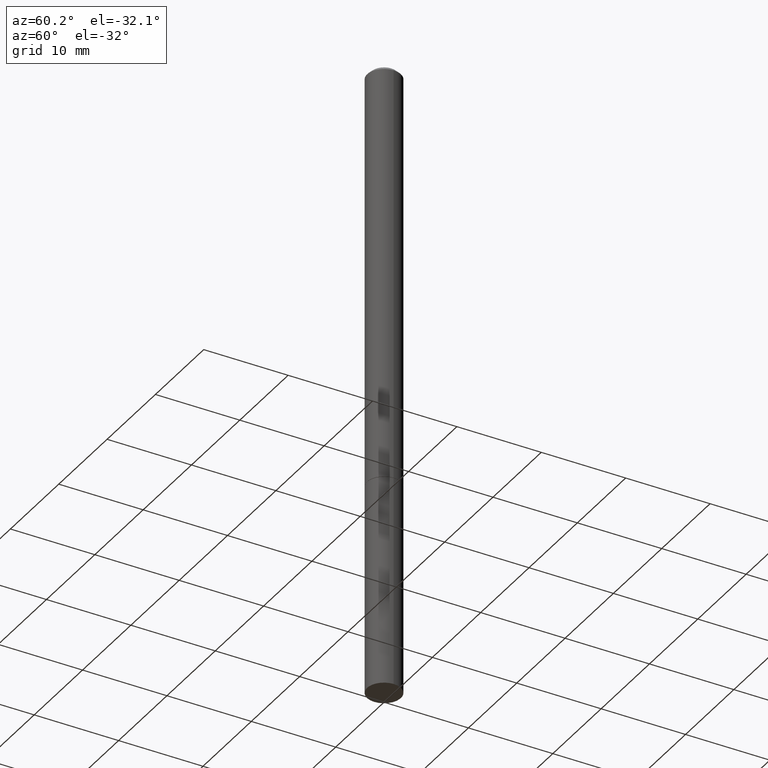
[diagram: clean part render]
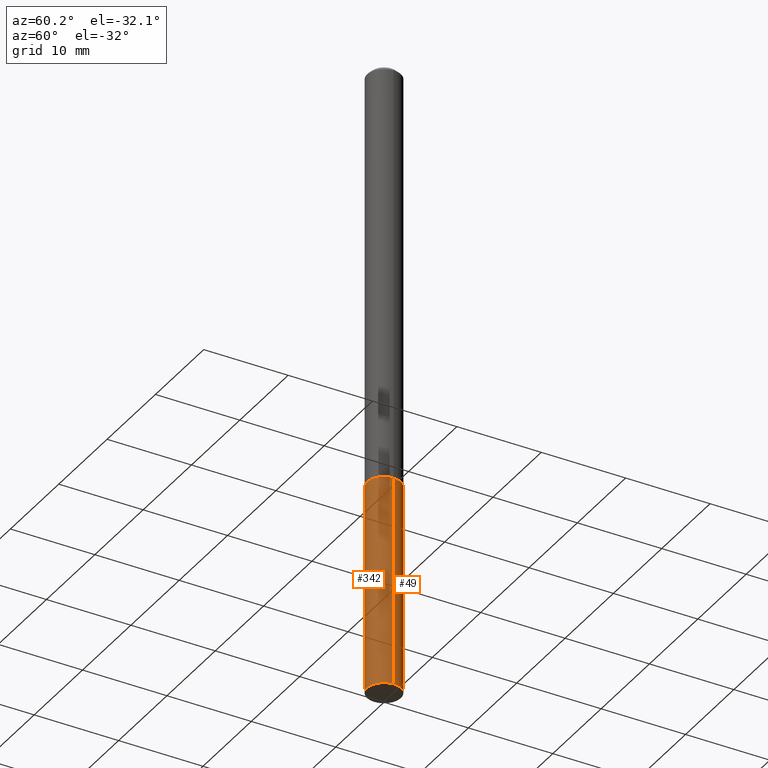
[diagram: same view with one multi-face feature highlighted, each face labeled with its STEP entity id]
A machine part, auxiliary view. The highlighted faces form ONE feature: a constant-radius fillet chain: 2 tangent blend faces with common blend radius 2.0002 mm. The faces share edges in the B-rep.
Their STEP definitions:
[1] entity #342 (Cylinder):
#13 = VERTEX_POINT ( 'NONE', #56 ) ;
#17 = AXIS2_PLACEMENT_3D ( 'NONE', #284, #256, #144 ) ;
#20 = DIRECTION ( 'NONE',  ( 1.000000000000000000, -6.982962677686265922E-15, 4.876176775795935232E-29 ) ) ;
#25 = VERTEX_POINT ( 'NONE', #330 ) ;
#27 = CARTESIAN_POINT ( 'NONE',  ( 7.220980290903470182E-29, -1.030964609733603853E-14, -2.952799999999999869 ) ) ;
#33 = DIRECTION ( 'NONE',  ( -2.445468806185136597E-29, 3.491481338843145583E-15, 1.000000000000000000 ) ) ;
#46 = AXIS2_PLACEMENT_3D ( 'NONE', #89, #33, #20 ) ;
#48 = LINE ( 'NONE', #212, #356 ) ;
#56 = CARTESIAN_POINT ( 'NONE',  ( 0.07875000000000000056, -1.085955440820383187E-14, -2.952799999999999869 ) ) ;
#74 = CARTESIAN_POINT ( 'NONE',  ( 0.07875000000000000056, -7.422889326380523475E-15, -1.968499999999999694 ) ) ;
#81 = VERTEX_POINT ( 'NONE', #307 ) ;
#89 = CARTESIAN_POINT ( 'NONE',  ( 0.000000000000000000, 0.000000000000000000, 0.000000000000000000 ) ) ;
#100 = VECTOR ( 'NONE', #362, 39.37007874015748143 ) ;
#116 = EDGE_LOOP ( 'NONE', ( #235, #266, #197, #351 ) ) ;
#144 = DIRECTION ( 'NONE',  ( 1.000000000000000000, -6.982962677686261977E-15, 0.000000000000000000 ) ) ;
#146 = CIRCLE ( 'NONE', #288, 0.07875000000000000056 ) ;
#162 = EDGE_CURVE ( 'NONE', #13, #360, #48, .T. ) ;
#168 = DIRECTION ( 'NONE',  ( -2.445468806185136597E-29, 3.491481338843145583E-15, 1.000000000000000000 ) ) ;
#176 = CIRCLE ( 'NONE', #17, 0.07875000000000000056 ) ;
#185 = EDGE_CURVE ( 'NONE', #81, #360, #176, .T. ) ;
#197 = ORIENTED_EDGE ( 'NONE', *, *, #162, .T. ) ;
#201 = DIRECTION ( 'NONE',  ( 1.000000000000000000, -6.982962677686261977E-15, 0.000000000000000000 ) ) ;
#202 = CYLINDRICAL_SURFACE ( 'NONE', #46, 0.07875000000000000056 ) ;
#212 = CARTESIAN_POINT ( 'NONE',  ( 0.07875000000000000056, -5.499083108677934443E-16, 3.839989210939299016E-30 ) ) ;
#226 = FACE_OUTER_BOUND ( 'NONE', #116, .T. ) ;
#235 = ORIENTED_EDGE ( 'NONE', *, *, #302, .F. ) ;
#252 = LINE ( 'NONE', #328, #100 ) ;
#256 = DIRECTION ( 'NONE',  ( -2.445468806185136597E-29, 3.491481338843145583E-15, 1.000000000000000000 ) ) ;
#266 = ORIENTED_EDGE ( 'NONE', *, *, #358, .T. ) ;
#284 = CARTESIAN_POINT ( 'NONE',  ( 4.813905344975440714E-29, -6.872981015512730918E-15, -1.968499999999999694 ) ) ;
#288 = AXIS2_PLACEMENT_3D ( 'NONE', #27, #168, #201 ) ;
#302 = EDGE_CURVE ( 'NONE', #25, #81, #252, .T. ) ;
#307 = CARTESIAN_POINT ( 'NONE',  ( -0.07875000000000000056, -8.031761152013305527E-15, -1.968499999999999694 ) ) ;
#319 = DIRECTION ( 'NONE',  ( -2.445468806185136877E-29, 3.491481338843145188E-15, 1.000000000000000000 ) ) ;
#328 = CARTESIAN_POINT ( 'NONE',  ( -0.07875000000000000056, 5.595524044110789003E-16, -3.873661383575737792E-30 ) ) ;
#330 = CARTESIAN_POINT ( 'NONE',  ( -0.07875000000000000056, -8.031761152013305527E-15, -2.952799999999999869 ) ) ;
#342 = ADVANCED_FACE ( 'NONE', ( #226 ), #202, .T. ) ;
#351 = ORIENTED_EDGE ( 'NONE', *, *, #185, .F. ) ;
#356 = VECTOR ( 'NONE', #319, 39.37007874015748143 ) ;
#358 = EDGE_CURVE ( 'NONE', #25, #13, #146, .T. ) ;
#360 = VERTEX_POINT ( 'NONE', #74 ) ;
#362 = DIRECTION ( 'NONE',  ( -2.445468806185136877E-29, 3.491481338843145188E-15, 1.000000000000000000 ) ) ;
[2] entity #49 (Cylinder):
#13 = VERTEX_POINT ( 'NONE', #56 ) ;
#25 = VERTEX_POINT ( 'NONE', #330 ) ;
#48 = LINE ( 'NONE', #212, #356 ) ;
#49 = ADVANCED_FACE ( 'NONE', ( #136 ), #326, .T. ) ;
#50 = DIRECTION ( 'NONE',  ( -2.445468806185136597E-29, 3.491481338843145583E-15, 1.000000000000000000 ) ) ;
#56 = CARTESIAN_POINT ( 'NONE',  ( 0.07875000000000000056, -1.085955440820383187E-14, -2.952799999999999869 ) ) ;
#74 = CARTESIAN_POINT ( 'NONE',  ( 0.07875000000000000056, -7.422889326380523475E-15, -1.968499999999999694 ) ) ;
#76 = CARTESIAN_POINT ( 'NONE',  ( 0.000000000000000000, 0.000000000000000000, 0.000000000000000000 ) ) ;
#81 = VERTEX_POINT ( 'NONE', #307 ) ;
#84 = DIRECTION ( 'NONE',  ( -2.445468806185136597E-29, 3.491481338843145583E-15, 1.000000000000000000 ) ) ;
#100 = VECTOR ( 'NONE', #362, 39.37007874015748143 ) ;
#104 = DIRECTION ( 'NONE',  ( 1.000000000000000000, -6.982962677686261977E-15, 0.000000000000000000 ) ) ;
#136 = FACE_OUTER_BOUND ( 'NONE', #188, .T. ) ;
#138 = ORIENTED_EDGE ( 'NONE', *, *, #302, .T. ) ;
#162 = EDGE_CURVE ( 'NONE', #13, #360, #48, .T. ) ;
#188 = EDGE_LOOP ( 'NONE', ( #216, #138, #255, #281 ) ) ;
#208 = CARTESIAN_POINT ( 'NONE',  ( 7.220980290903470182E-29, -1.030964609733603853E-14, -2.952799999999999869 ) ) ;
#211 = DIRECTION ( 'NONE',  ( -2.445468806185136597E-29, 3.491481338843145583E-15, 1.000000000000000000 ) ) ;
#212 = CARTESIAN_POINT ( 'NONE',  ( 0.07875000000000000056, -5.499083108677934443E-16, 3.839989210939299016E-30 ) ) ;
#214 = AXIS2_PLACEMENT_3D ( 'NONE', #76, #50, #301 ) ;
#216 = ORIENTED_EDGE ( 'NONE', *, *, #269, .T. ) ;
#243 = AXIS2_PLACEMENT_3D ( 'NONE', #335, #84, #273 ) ;
#252 = LINE ( 'NONE', #328, #100 ) ;
#255 = ORIENTED_EDGE ( 'NONE', *, *, #322, .F. ) ;
#269 = EDGE_CURVE ( 'NONE', #13, #25, #357, .T. ) ;
#273 = DIRECTION ( 'NONE',  ( 1.000000000000000000, -6.982962677686261977E-15, 0.000000000000000000 ) ) ;
#281 = ORIENTED_EDGE ( 'NONE', *, *, #162, .F. ) ;
#291 = AXIS2_PLACEMENT_3D ( 'NONE', #208, #211, #104 ) ;
#301 = DIRECTION ( 'NONE',  ( 1.000000000000000000, -6.982962677686265922E-15, 4.876176775795935232E-29 ) ) ;
#302 = EDGE_CURVE ( 'NONE', #25, #81, #252, .T. ) ;
#307 = CARTESIAN_POINT ( 'NONE',  ( -0.07875000000000000056, -8.031761152013305527E-15, -1.968499999999999694 ) ) ;
#319 = DIRECTION ( 'NONE',  ( -2.445468806185136877E-29, 3.491481338843145188E-15, 1.000000000000000000 ) ) ;
#322 = EDGE_CURVE ( 'NONE', #360, #81, #339, .T. ) ;
#326 = CYLINDRICAL_SURFACE ( 'NONE', #214, 0.07875000000000000056 ) ;
#328 = CARTESIAN_POINT ( 'NONE',  ( -0.07875000000000000056, 5.595524044110789003E-16, -3.873661383575737792E-30 ) ) ;
#330 = CARTESIAN_POINT ( 'NONE',  ( -0.07875000000000000056, -8.031761152013305527E-15, -2.952799999999999869 ) ) ;
#335 = CARTESIAN_POINT ( 'NONE',  ( 4.813905344975440714E-29, -6.872981015512730918E-15, -1.968499999999999694 ) ) ;
#339 = CIRCLE ( 'NONE', #243, 0.07875000000000000056 ) ;
#356 = VECTOR ( 'NONE', #319, 39.37007874015748143 ) ;
#357 = CIRCLE ( 'NONE', #291, 0.07875000000000000056 ) ;
#360 = VERTEX_POINT ( 'NONE', #74 ) ;
#362 = DIRECTION ( 'NONE',  ( -2.445468806185136877E-29, 3.491481338843145188E-15, 1.000000000000000000 ) ) ;